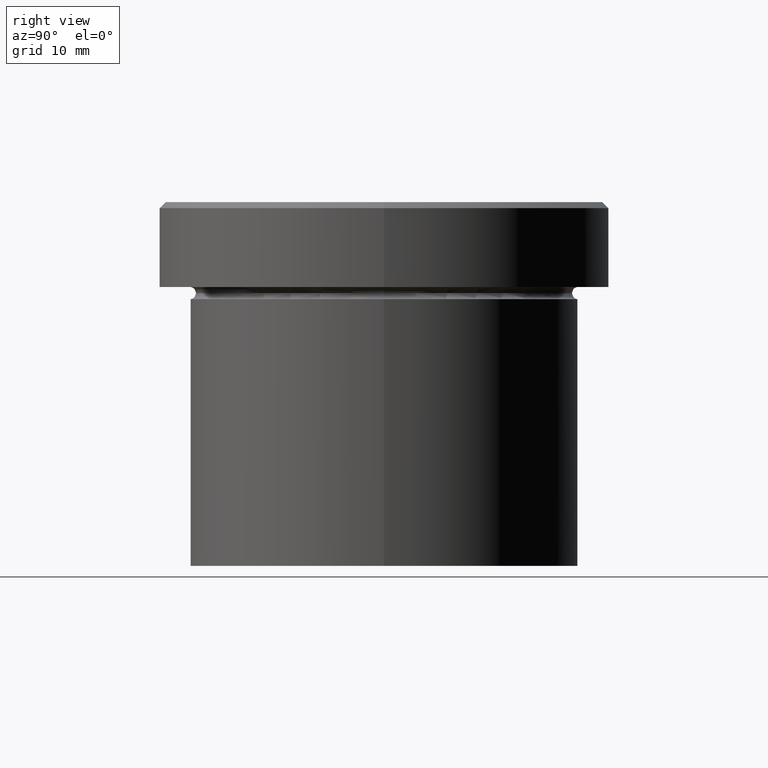
[diagram: clean part render]
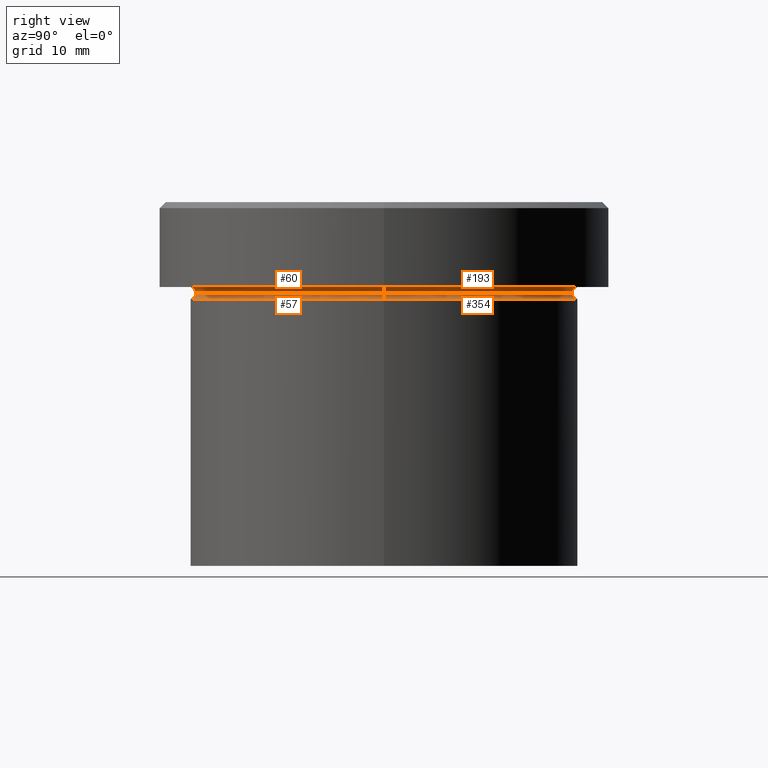
[diagram: same view with one multi-face feature highlighted, each face labeled with its STEP entity id]
A machine part, right view. The highlighted faces form ONE feature: a constant-radius fillet chain: 4 tangent blend faces with common blend radius 0.5 mm. The faces share edges in the B-rep.
Their STEP definitions:
[1] entity #57 (Torus):
#7 = CARTESIAN_POINT ( 'NONE',  ( -16.00000000000000000, 1.959434878635765131E-15, -7.500000000000000000 ) ) ;
#11 = EDGE_CURVE ( 'NONE', #261, #292, #179, .T. ) ;
#17 = VERTEX_POINT ( 'NONE', #374 ) ;
#28 = AXIS2_PLACEMENT_3D ( 'NONE', #47, #283, #332 ) ;
#34 = CARTESIAN_POINT ( 'NONE',  ( 0.000000000000000000, 0.000000000000000000, -7.500000000000000000 ) ) ;
#47 = CARTESIAN_POINT ( 'NONE',  ( 0.000000000000000000, 0.000000000000000000, -7.500000000000000000 ) ) ;
#57 = ADVANCED_FACE ( 'NONE', ( #87 ), #264, .F. ) ;
#73 = DIRECTION ( 'NONE',  ( 1.000000000000000000, 0.000000000000000000, 0.000000000000000000 ) ) ;
#84 = EDGE_CURVE ( 'NONE', #341, #292, #315, .T. ) ;
#87 = FACE_OUTER_BOUND ( 'NONE', #260, .T. ) ;
#94 = ORIENTED_EDGE ( 'NONE', *, *, #11, .F. ) ;
#106 = AXIS2_PLACEMENT_3D ( 'NONE', #207, #282, #73 ) ;
#143 = AXIS2_PLACEMENT_3D ( 'NONE', #257, #184, #314 ) ;
#165 = DIRECTION ( 'NONE',  ( 1.000000000000000000, 0.000000000000000000, 0.000000000000000000 ) ) ;
#176 = EDGE_CURVE ( 'NONE', #17, #261, #270, .T. ) ;
#179 = CIRCLE ( 'NONE', #143, 0.5000000000000004441 ) ;
#181 = ORIENTED_EDGE ( 'NONE', *, *, #254, .T. ) ;
#184 = DIRECTION ( 'NONE',  ( 0.000000000000000000, -1.000000000000000000, 0.000000000000000000 ) ) ;
#186 = AXIS2_PLACEMENT_3D ( 'NONE', #34, #278, #165 ) ;
#202 = CIRCLE ( 'NONE', #262, 0.5000000000000004441 ) ;
#207 = CARTESIAN_POINT ( 'NONE',  ( 0.000000000000000000, 0.000000000000000000, -8.000000000000000000 ) ) ;
#210 = CARTESIAN_POINT ( 'NONE',  ( 15.50000000000000000, 0.000000000000000000, -7.500000000000000000 ) ) ;
#254 = EDGE_CURVE ( 'NONE', #17, #341, #202, .T. ) ;
#257 = CARTESIAN_POINT ( 'NONE',  ( 16.00000000000000000, 0.000000000000000000, -7.500000000000000000 ) ) ;
#260 = EDGE_LOOP ( 'NONE', ( #290, #181, #294, #94 ) ) ;
#261 = VERTEX_POINT ( 'NONE', #210 ) ;
#262 = AXIS2_PLACEMENT_3D ( 'NONE', #7, #366, #300 ) ;
#264 = TOROIDAL_SURFACE ( 'NONE', #28, 16.00000000000000000, 0.5000000000000000000 ) ;
#270 = CIRCLE ( 'NONE', #186, 15.50000000000000000 ) ;
#278 = DIRECTION ( 'NONE',  ( -0.000000000000000000, -0.000000000000000000, 1.000000000000000000 ) ) ;
#282 = DIRECTION ( 'NONE',  ( -0.000000000000000000, -0.000000000000000000, 1.000000000000000000 ) ) ;
#283 = DIRECTION ( 'NONE',  ( -0.000000000000000000, -0.000000000000000000, 1.000000000000000000 ) ) ;
#290 = ORIENTED_EDGE ( 'NONE', *, *, #176, .F. ) ;
#292 = VERTEX_POINT ( 'NONE', #358 ) ;
#294 = ORIENTED_EDGE ( 'NONE', *, *, #84, .T. ) ;
#300 = DIRECTION ( 'NONE',  ( -1.000000000000000000, 1.224646799147349509E-16, 0.000000000000000000 ) ) ;
#314 = DIRECTION ( 'NONE',  ( 0.000000000000000000, 0.000000000000000000, -1.000000000000000000 ) ) ;
#315 = CIRCLE ( 'NONE', #106, 16.00000000000000000 ) ;
#332 = DIRECTION ( 'NONE',  ( 1.000000000000000000, 0.000000000000000000, 0.000000000000000000 ) ) ;
#341 = VERTEX_POINT ( 'NONE', #389 ) ;
#358 = CARTESIAN_POINT ( 'NONE',  ( 16.00000000000000000, 0.000000000000000000, -8.000000000000000000 ) ) ;
#366 = DIRECTION ( 'NONE',  ( 1.224646799147353207E-16, 1.000000000000000000, 0.000000000000000000 ) ) ;
#374 = CARTESIAN_POINT ( 'NONE',  ( -15.50000000000000000, 1.928818708657081344E-15, -7.500000000000000000 ) ) ;
#389 = CARTESIAN_POINT ( 'NONE',  ( -16.00000000000000000, 1.959434878635765131E-15, -8.000000000000000000 ) ) ;
[2] entity #354 (Torus):
#7 = CARTESIAN_POINT ( 'NONE',  ( -16.00000000000000000, 1.959434878635765131E-15, -7.500000000000000000 ) ) ;
#11 = EDGE_CURVE ( 'NONE', #261, #292, #179, .T. ) ;
#17 = VERTEX_POINT ( 'NONE', #374 ) ;
#37 = DIRECTION ( 'NONE',  ( 1.000000000000000000, 0.000000000000000000, 0.000000000000000000 ) ) ;
#71 = FACE_OUTER_BOUND ( 'NONE', #331, .T. ) ;
#102 = CARTESIAN_POINT ( 'NONE',  ( 0.000000000000000000, 0.000000000000000000, -7.500000000000000000 ) ) ;
#120 = ORIENTED_EDGE ( 'NONE', *, *, #11, .T. ) ;
#124 = TOROIDAL_SURFACE ( 'NONE', #408, 16.00000000000000000, 0.5000000000000000000 ) ;
#138 = CARTESIAN_POINT ( 'NONE',  ( 0.000000000000000000, 0.000000000000000000, -8.000000000000000000 ) ) ;
#140 = DIRECTION ( 'NONE',  ( -0.000000000000000000, -0.000000000000000000, 1.000000000000000000 ) ) ;
#143 = AXIS2_PLACEMENT_3D ( 'NONE', #257, #184, #314 ) ;
#160 = ORIENTED_EDGE ( 'NONE', *, *, #167, .F. ) ;
#167 = EDGE_CURVE ( 'NONE', #261, #17, #211, .T. ) ;
#179 = CIRCLE ( 'NONE', #143, 0.5000000000000004441 ) ;
#184 = DIRECTION ( 'NONE',  ( 0.000000000000000000, -1.000000000000000000, 0.000000000000000000 ) ) ;
#202 = CIRCLE ( 'NONE', #262, 0.5000000000000004441 ) ;
#210 = CARTESIAN_POINT ( 'NONE',  ( 15.50000000000000000, 0.000000000000000000, -7.500000000000000000 ) ) ;
#211 = CIRCLE ( 'NONE', #232, 15.50000000000000000 ) ;
#232 = AXIS2_PLACEMENT_3D ( 'NONE', #330, #269, #37 ) ;
#239 = DIRECTION ( 'NONE',  ( 1.000000000000000000, 0.000000000000000000, 0.000000000000000000 ) ) ;
#242 = CIRCLE ( 'NONE', #252, 16.00000000000000000 ) ;
#249 = DIRECTION ( 'NONE',  ( -0.000000000000000000, -0.000000000000000000, 1.000000000000000000 ) ) ;
#252 = AXIS2_PLACEMENT_3D ( 'NONE', #138, #249, #308 ) ;
#254 = EDGE_CURVE ( 'NONE', #17, #341, #202, .T. ) ;
#257 = CARTESIAN_POINT ( 'NONE',  ( 16.00000000000000000, 0.000000000000000000, -7.500000000000000000 ) ) ;
#261 = VERTEX_POINT ( 'NONE', #210 ) ;
#262 = AXIS2_PLACEMENT_3D ( 'NONE', #7, #366, #300 ) ;
#269 = DIRECTION ( 'NONE',  ( -0.000000000000000000, -0.000000000000000000, 1.000000000000000000 ) ) ;
#292 = VERTEX_POINT ( 'NONE', #358 ) ;
#300 = DIRECTION ( 'NONE',  ( -1.000000000000000000, 1.224646799147349509E-16, 0.000000000000000000 ) ) ;
#308 = DIRECTION ( 'NONE',  ( 1.000000000000000000, 0.000000000000000000, 0.000000000000000000 ) ) ;
#314 = DIRECTION ( 'NONE',  ( 0.000000000000000000, 0.000000000000000000, -1.000000000000000000 ) ) ;
#330 = CARTESIAN_POINT ( 'NONE',  ( 0.000000000000000000, 0.000000000000000000, -7.500000000000000000 ) ) ;
#331 = EDGE_LOOP ( 'NONE', ( #405, #160, #120, #404 ) ) ;
#341 = VERTEX_POINT ( 'NONE', #389 ) ;
#347 = EDGE_CURVE ( 'NONE', #292, #341, #242, .T. ) ;
#354 = ADVANCED_FACE ( 'NONE', ( #71 ), #124, .F. ) ;
#358 = CARTESIAN_POINT ( 'NONE',  ( 16.00000000000000000, 0.000000000000000000, -8.000000000000000000 ) ) ;
#366 = DIRECTION ( 'NONE',  ( 1.224646799147353207E-16, 1.000000000000000000, 0.000000000000000000 ) ) ;
#374 = CARTESIAN_POINT ( 'NONE',  ( -15.50000000000000000, 1.928818708657081344E-15, -7.500000000000000000 ) ) ;
#389 = CARTESIAN_POINT ( 'NONE',  ( -16.00000000000000000, 1.959434878635765131E-15, -8.000000000000000000 ) ) ;
#404 = ORIENTED_EDGE ( 'NONE', *, *, #347, .T. ) ;
#405 = ORIENTED_EDGE ( 'NONE', *, *, #254, .F. ) ;
#408 = AXIS2_PLACEMENT_3D ( 'NONE', #102, #140, #239 ) ;
[3] entity #193 (Torus):
#3 = AXIS2_PLACEMENT_3D ( 'NONE', #177, #66, #310 ) ;
#17 = VERTEX_POINT ( 'NONE', #374 ) ;
#20 = EDGE_CURVE ( 'NONE', #17, #227, #221, .T. ) ;
#35 = EDGE_CURVE ( 'NONE', #263, #227, #162, .T. ) ;
#37 = DIRECTION ( 'NONE',  ( 1.000000000000000000, 0.000000000000000000, 0.000000000000000000 ) ) ;
#41 = AXIS2_PLACEMENT_3D ( 'NONE', #274, #59, #164 ) ;
#45 = ORIENTED_EDGE ( 'NONE', *, *, #167, .T. ) ;
#49 = ORIENTED_EDGE ( 'NONE', *, *, #20, .T. ) ;
#51 = EDGE_LOOP ( 'NONE', ( #122, #45, #49, #291 ) ) ;
#59 = DIRECTION ( 'NONE',  ( 0.000000000000000000, 0.000000000000000000, -1.000000000000000000 ) ) ;
#66 = DIRECTION ( 'NONE',  ( -1.224646799147353207E-16, 1.000000000000000000, 0.000000000000000000 ) ) ;
#76 = AXIS2_PLACEMENT_3D ( 'NONE', #287, #80, #217 ) ;
#80 = DIRECTION ( 'NONE',  ( -0.000000000000000000, -0.000000000000000000, 1.000000000000000000 ) ) ;
#113 = EDGE_CURVE ( 'NONE', #261, #263, #279, .T. ) ;
#122 = ORIENTED_EDGE ( 'NONE', *, *, #113, .F. ) ;
#158 = CARTESIAN_POINT ( 'NONE',  ( -16.00000000000000000, 0.000000000000000000, -7.500000000000000000 ) ) ;
#161 = TOROIDAL_SURFACE ( 'NONE', #41, 16.00000000000000000, 0.5000000000000000000 ) ;
#162 = CIRCLE ( 'NONE', #76, 16.00000000000000000 ) ;
#164 = DIRECTION ( 'NONE',  ( -1.000000000000000000, 0.000000000000000000, 0.000000000000000000 ) ) ;
#167 = EDGE_CURVE ( 'NONE', #261, #17, #211, .T. ) ;
#173 = FACE_OUTER_BOUND ( 'NONE', #51, .T. ) ;
#177 = CARTESIAN_POINT ( 'NONE',  ( 16.00000000000000000, 1.959434878635765131E-15, -7.500000000000000000 ) ) ;
#193 = ADVANCED_FACE ( 'NONE', ( #173 ), #161, .F. ) ;
#210 = CARTESIAN_POINT ( 'NONE',  ( 15.50000000000000000, 0.000000000000000000, -7.500000000000000000 ) ) ;
#211 = CIRCLE ( 'NONE', #232, 15.50000000000000000 ) ;
#214 = AXIS2_PLACEMENT_3D ( 'NONE', #158, #399, #255 ) ;
#217 = DIRECTION ( 'NONE',  ( -1.000000000000000000, 0.000000000000000000, 0.000000000000000000 ) ) ;
#221 = CIRCLE ( 'NONE', #214, 0.5000000000000004441 ) ;
#227 = VERTEX_POINT ( 'NONE', #328 ) ;
#232 = AXIS2_PLACEMENT_3D ( 'NONE', #330, #269, #37 ) ;
#255 = DIRECTION ( 'NONE',  ( 0.000000000000000000, 0.000000000000000000, -1.000000000000000000 ) ) ;
#261 = VERTEX_POINT ( 'NONE', #210 ) ;
#263 = VERTEX_POINT ( 'NONE', #277 ) ;
#269 = DIRECTION ( 'NONE',  ( -0.000000000000000000, -0.000000000000000000, 1.000000000000000000 ) ) ;
#274 = CARTESIAN_POINT ( 'NONE',  ( 0.000000000000000000, 0.000000000000000000, -7.500000000000000000 ) ) ;
#277 = CARTESIAN_POINT ( 'NONE',  ( 16.00000000000000000, 1.959434878635765131E-15, -6.999999999999999112 ) ) ;
#279 = CIRCLE ( 'NONE', #3, 0.5000000000000004441 ) ;
#287 = CARTESIAN_POINT ( 'NONE',  ( 0.000000000000000000, 0.000000000000000000, -6.999999999999999112 ) ) ;
#291 = ORIENTED_EDGE ( 'NONE', *, *, #35, .F. ) ;
#310 = DIRECTION ( 'NONE',  ( -1.000000000000000000, -1.224646799147349509E-16, 0.000000000000000000 ) ) ;
#328 = CARTESIAN_POINT ( 'NONE',  ( -16.00000000000000000, 0.000000000000000000, -6.999999999999999112 ) ) ;
#330 = CARTESIAN_POINT ( 'NONE',  ( 0.000000000000000000, 0.000000000000000000, -7.500000000000000000 ) ) ;
#374 = CARTESIAN_POINT ( 'NONE',  ( -15.50000000000000000, 1.928818708657081344E-15, -7.500000000000000000 ) ) ;
#399 = DIRECTION ( 'NONE',  ( -0.000000000000000000, -1.000000000000000000, -0.000000000000000000 ) ) ;
[4] entity #60 (Torus):
#3 = AXIS2_PLACEMENT_3D ( 'NONE', #177, #66, #310 ) ;
#17 = VERTEX_POINT ( 'NONE', #374 ) ;
#20 = EDGE_CURVE ( 'NONE', #17, #227, #221, .T. ) ;
#34 = CARTESIAN_POINT ( 'NONE',  ( 0.000000000000000000, 0.000000000000000000, -7.500000000000000000 ) ) ;
#60 = ADVANCED_FACE ( 'NONE', ( #340 ), #67, .F. ) ;
#63 = CARTESIAN_POINT ( 'NONE',  ( 0.000000000000000000, 0.000000000000000000, -6.999999999999999112 ) ) ;
#66 = DIRECTION ( 'NONE',  ( -1.224646799147353207E-16, 1.000000000000000000, 0.000000000000000000 ) ) ;
#67 = TOROIDAL_SURFACE ( 'NONE', #373, 16.00000000000000000, 0.5000000000000000000 ) ;
#95 = ORIENTED_EDGE ( 'NONE', *, *, #113, .T. ) ;
#113 = EDGE_CURVE ( 'NONE', #261, #263, #279, .T. ) ;
#115 = CARTESIAN_POINT ( 'NONE',  ( 0.000000000000000000, 0.000000000000000000, -7.500000000000000000 ) ) ;
#139 = DIRECTION ( 'NONE',  ( -1.000000000000000000, 0.000000000000000000, 0.000000000000000000 ) ) ;
#158 = CARTESIAN_POINT ( 'NONE',  ( -16.00000000000000000, 0.000000000000000000, -7.500000000000000000 ) ) ;
#159 = ORIENTED_EDGE ( 'NONE', *, *, #20, .F. ) ;
#165 = DIRECTION ( 'NONE',  ( 1.000000000000000000, 0.000000000000000000, 0.000000000000000000 ) ) ;
#171 = DIRECTION ( 'NONE',  ( -0.000000000000000000, -0.000000000000000000, 1.000000000000000000 ) ) ;
#176 = EDGE_CURVE ( 'NONE', #17, #261, #270, .T. ) ;
#177 = CARTESIAN_POINT ( 'NONE',  ( 16.00000000000000000, 1.959434878635765131E-15, -7.500000000000000000 ) ) ;
#186 = AXIS2_PLACEMENT_3D ( 'NONE', #34, #278, #165 ) ;
#205 = DIRECTION ( 'NONE',  ( 0.000000000000000000, 0.000000000000000000, -1.000000000000000000 ) ) ;
#210 = CARTESIAN_POINT ( 'NONE',  ( 15.50000000000000000, 0.000000000000000000, -7.500000000000000000 ) ) ;
#214 = AXIS2_PLACEMENT_3D ( 'NONE', #158, #399, #255 ) ;
#221 = CIRCLE ( 'NONE', #214, 0.5000000000000004441 ) ;
#224 = ORIENTED_EDGE ( 'NONE', *, *, #176, .T. ) ;
#226 = AXIS2_PLACEMENT_3D ( 'NONE', #63, #171, #353 ) ;
#227 = VERTEX_POINT ( 'NONE', #328 ) ;
#229 = EDGE_LOOP ( 'NONE', ( #224, #95, #318, #159 ) ) ;
#255 = DIRECTION ( 'NONE',  ( 0.000000000000000000, 0.000000000000000000, -1.000000000000000000 ) ) ;
#261 = VERTEX_POINT ( 'NONE', #210 ) ;
#263 = VERTEX_POINT ( 'NONE', #277 ) ;
#270 = CIRCLE ( 'NONE', #186, 15.50000000000000000 ) ;
#277 = CARTESIAN_POINT ( 'NONE',  ( 16.00000000000000000, 1.959434878635765131E-15, -6.999999999999999112 ) ) ;
#278 = DIRECTION ( 'NONE',  ( -0.000000000000000000, -0.000000000000000000, 1.000000000000000000 ) ) ;
#279 = CIRCLE ( 'NONE', #3, 0.5000000000000004441 ) ;
#310 = DIRECTION ( 'NONE',  ( -1.000000000000000000, -1.224646799147349509E-16, 0.000000000000000000 ) ) ;
#311 = EDGE_CURVE ( 'NONE', #227, #263, #333, .T. ) ;
#318 = ORIENTED_EDGE ( 'NONE', *, *, #311, .F. ) ;
#328 = CARTESIAN_POINT ( 'NONE',  ( -16.00000000000000000, 0.000000000000000000, -6.999999999999999112 ) ) ;
#333 = CIRCLE ( 'NONE', #226, 16.00000000000000000 ) ;
#340 = FACE_OUTER_BOUND ( 'NONE', #229, .T. ) ;
#353 = DIRECTION ( 'NONE',  ( -1.000000000000000000, 0.000000000000000000, 0.000000000000000000 ) ) ;
#373 = AXIS2_PLACEMENT_3D ( 'NONE', #115, #205, #139 ) ;
#374 = CARTESIAN_POINT ( 'NONE',  ( -15.50000000000000000, 1.928818708657081344E-15, -7.500000000000000000 ) ) ;
#399 = DIRECTION ( 'NONE',  ( -0.000000000000000000, -1.000000000000000000, -0.000000000000000000 ) ) ;